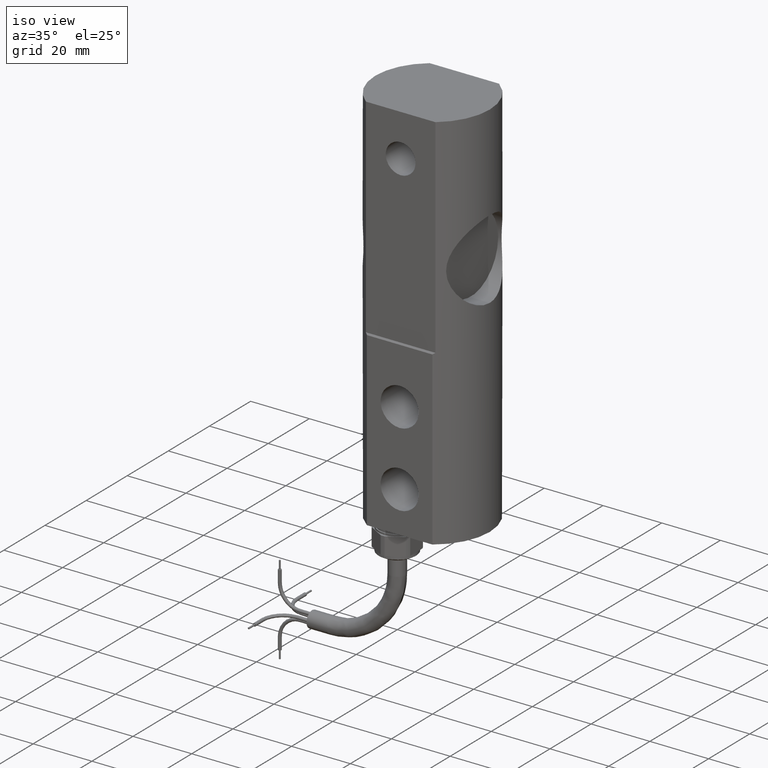
[diagram: clean part render]
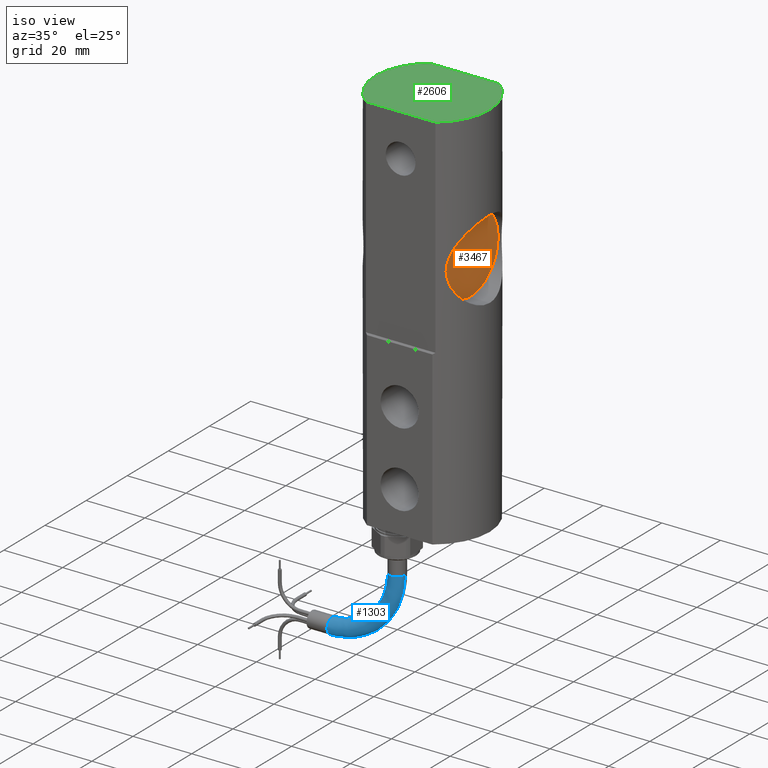
[diagram: same view with three faces highlighted in distinct colors, each labeled with its STEP entity id]
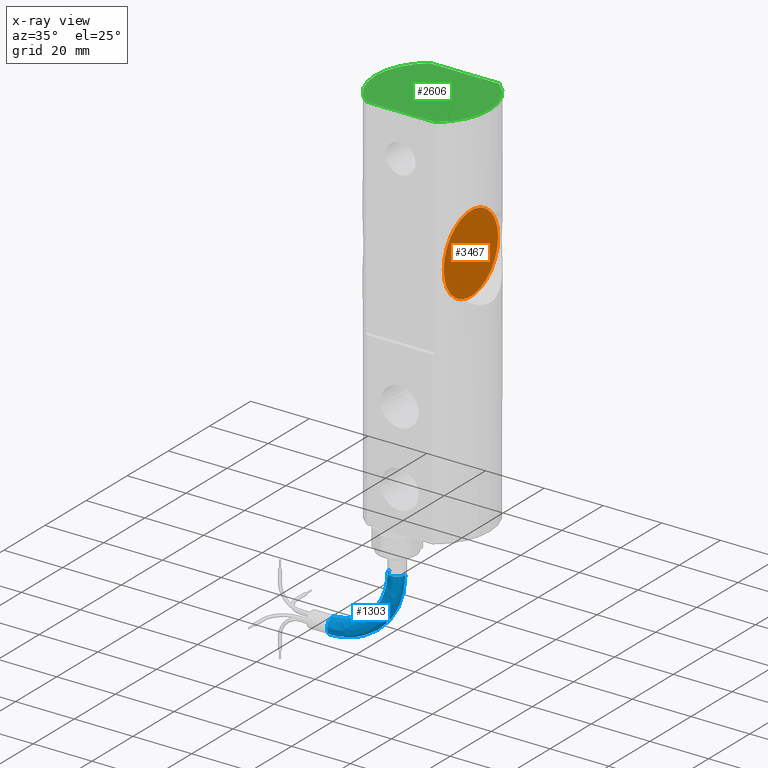
[diagram: x-ray of the same camera — body ghosted, the three highlighted faces saturated]
A machine part, iso view with three faces highlighted in distinct colors.
The next image is the same camera in x-ray (body ghosted, the three faces saturated) — at least one of them is partly hidden behind the body in this view.
Their STEP definitions:

[orange] entity #3467 — the highlighted planar face has unit normal (-1, 0, -0).
#105 = EDGE_LOOP ( 'NONE', ( #7913, #4775 ) ) ;
#336 = DIRECTION ( 'NONE',  ( 1.309225264888156130E-16, 1.000000000000000000, 0.000000000000000000 ) ) ;
#606 = DIRECTION ( 'NONE',  ( -1.000000000000000000, 9.367506770274759542E-17, -5.551115123125781470E-17 ) ) ;
#775 = CIRCLE ( 'NONE', #2448, 0.5216535433070866867 ) ;
#1503 = CIRCLE ( 'NONE', #2020, 0.5216535433070866867 ) ;
#1770 = AXIS2_PLACEMENT_3D ( 'NONE', #3108, #6792, #4793 ) ;
#2020 = AXIS2_PLACEMENT_3D ( 'NONE', #2155, #3350, #336 ) ;
#2155 = CARTESIAN_POINT ( 'NONE',  ( 0.5146160346248144224, -4.502050805039060145E-33, 0.7480314960629921295 ) ) ;
#2448 = AXIS2_PLACEMENT_3D ( 'NONE', #2462, #606, #4817 ) ;
#2462 = CARTESIAN_POINT ( 'NONE',  ( 0.5146160346248144224, -4.502050805039060145E-33, 0.7480314960629921295 ) ) ;
#2472 = FACE_OUTER_BOUND ( 'NONE', #105, .T. ) ;
#2503 = CARTESIAN_POINT ( 'NONE',  ( 0.5146160346248144224, -0.5216535433070866867, 0.7480314960629921295 ) ) ;
#2694 = VERTEX_POINT ( 'NONE', #4287 ) ;
#2770 = EDGE_CURVE ( 'NONE', #3878, #2694, #775, .T. ) ;
#2988 = PLANE ( 'NONE',  #1770 ) ;
#3108 = CARTESIAN_POINT ( 'NONE',  ( 0.5146160346248144224, 0.000000000000000000, 0.7480314960629921295 ) ) ;
#3350 = DIRECTION ( 'NONE',  ( -1.000000000000000000, 9.367506770274759542E-17, -5.551115123125781470E-17 ) ) ;
#3467 = ADVANCED_FACE ( 'NONE', ( #2472 ), #2988, .F. ) ;
#3878 = VERTEX_POINT ( 'NONE', #2503 ) ;
#4287 = CARTESIAN_POINT ( 'NONE',  ( 0.5146160346248145334, 0.5216535433070866867, 0.7480314960629921295 ) ) ;
#4492 = EDGE_CURVE ( 'NONE', #2694, #3878, #1503, .T. ) ;
#4775 = ORIENTED_EDGE ( 'NONE', *, *, #2770, .F. ) ;
#4793 = DIRECTION ( 'NONE',  ( -9.367506770274759542E-17, -1.000000000000000000, 0.000000000000000000 ) ) ;
#4817 = DIRECTION ( 'NONE',  ( 1.309225264888156130E-16, 1.000000000000000000, 0.000000000000000000 ) ) ;
#6792 = DIRECTION ( 'NONE',  ( -1.000000000000000000, 9.367506770274759542E-17, -5.551115123125781470E-17 ) ) ;
#7913 = ORIENTED_EDGE ( 'NONE', *, *, #4492, .F. ) ;

[blue] entity #1303 — the highlighted face is a freeform B-spline surface patch.
#362 = ORIENTED_EDGE ( 'NONE', *, *, #3856, .T. ) ;
#476 = DIRECTION ( 'NONE',  ( 2.929481985561874271E-34, 1.000000000000000000, -3.013039420990648003E-17 ) ) ;
#534 = VERTEX_POINT ( 'NONE', #7714 ) ;
#623 = AXIS2_PLACEMENT_3D ( 'NONE', #5542, #4936, #3016 ) ;
#798 = VERTEX_POINT ( 'NONE', #4467 ) ;
#808 = VERTEX_POINT ( 'NONE', #4959 ) ;
#931 = CARTESIAN_POINT ( 'NONE',  ( -1.338582677165401913, -3.006051234444428714E-16, -4.143700787401575880 ) ) ;
#970 = CARTESIAN_POINT ( 'NONE',  ( -0.8946303573103652207, -3.006051234444428714E-16, -4.143700787401575880 ) ) ;
#988 = CIRCLE ( 'NONE', #1381, 0.7578740157480315931 ) ;
#1223 = EDGE_CURVE ( 'NONE', #6460, #534, #5516, .T. ) ;
#1303 = ADVANCED_FACE ( 'NONE', ( #6340 ), #7888, .T. ) ;
#1314 = CARTESIAN_POINT ( 'NONE',  ( -1.338582677165402357, -2.645111093378986689E-16, -3.385826771653543510 ) ) ;
#1381 = AXIS2_PLACEMENT_3D ( 'NONE', #5976, #476, #7844 ) ;
#1496 = CARTESIAN_POINT ( 'NONE',  ( -0.5807086614173702088, -2.911465389961445604E-16, -3.829779091508580091 ) ) ;
#1580 = CARTESIAN_POINT ( 'NONE',  ( -0.8946303573103652207, -0.2165354330708663677, -4.143700787401575880 ) ) ;
#1768 = DIRECTION ( 'NONE',  ( 6.123233995736766036E-17, -3.013039420990648003E-17, -1.000000000000000000 ) ) ;
#2065 = CARTESIAN_POINT ( 'NONE',  ( -1.338582677165402135, -0.2165354330708663955, -4.143700787401575880 ) ) ;
#2717 = EDGE_CURVE ( 'NONE', #6460, #798, #5752, .T. ) ;
#3016 = DIRECTION ( 'NONE',  ( 0.000000000000000000, -3.013039420990646770E-17, -1.000000000000000000 ) ) ;
#3856 = EDGE_CURVE ( 'NONE', #808, #534, #6247, .T. ) ;
#3929 = CARTESIAN_POINT ( 'NONE',  ( -0.5807086614173702088, -2.777700805885097702E-16, -3.385826771653543510 ) ) ;
#3970 = CARTESIAN_POINT ( 'NONE',  ( -0.7677868373517837686, -0.2165354330708663955, -4.360236220472441637 ) ) ;
#4010 = CARTESIAN_POINT ( 'NONE',  ( -0.5807086614173703198, -0.2165354330708663677, -3.829779091508580979 ) ) ;
#4304 = EDGE_CURVE ( 'NONE', #798, #808, #988, .T. ) ;
#4441 = ORIENTED_EDGE ( 'NONE', *, *, #4304, .T. ) ;
#4454 = CARTESIAN_POINT ( 'NONE',  ( -0.5807086614173702088, -0.2165354330708663955, -3.385826771653543954 ) ) ;
#4467 = CARTESIAN_POINT ( 'NONE',  ( -0.5807086614173702088, -2.603592833640926818E-16, -3.385826771653543510 ) ) ;
#4534 = CARTESIAN_POINT ( 'NONE',  ( -0.3641732283465041187, -0.2165354330708663955, -3.956622611467162098 ) ) ;
#4604 = AXIS2_PLACEMENT_3D ( 'NONE', #1314, #6115, #6718 ) ;
#4936 = DIRECTION ( 'NONE',  ( 1.000000000000000000, 3.396960884064803638E-33, 1.224646799147353207E-16 ) ) ;
#4959 = CARTESIAN_POINT ( 'NONE',  ( -1.338582677165401913, -2.906083011732507493E-16, -4.143700787401574992 ) ) ;
#5140 = ORIENTED_EDGE ( 'NONE', *, *, #2717, .T. ) ;
#5174 = CARTESIAN_POINT ( 'NONE',  ( -1.338582677165401913, -2.938704501526698272E-16, -4.360236220472441637 ) ) ;
#5516 = CIRCLE ( 'NONE', #4604, 0.9744094488188980163 ) ;
#5542 = CARTESIAN_POINT ( 'NONE',  ( -1.338582677165401913, -2.906083011732507493E-16, -4.251968503937008315 ) ) ;
#5752 = CIRCLE ( 'NONE', #7309, 0.1082677165354330312 ) ;
#5828 = CARTESIAN_POINT ( 'NONE',  ( -0.7677868373517835465, -2.938704501526698765E-16, -4.360236220472441637 ) ) ;
#5922 = CARTESIAN_POINT ( 'NONE',  ( -0.3641732283465041742, -2.471003121134814819E-16, -3.385826771653543510 ) ) ;
#5976 = CARTESIAN_POINT ( 'NONE',  ( -1.338582677165402357, -2.777700805885097702E-16, -3.385826771653543510 ) ) ;
#6115 = DIRECTION ( 'NONE',  ( 2.929481985561874271E-34, 1.000000000000000000, -3.013039420990648003E-17 ) ) ;
#6247 = CIRCLE ( 'NONE', #623, 0.1082677165354331700 ) ;
#6305 = CARTESIAN_POINT ( 'NONE',  ( -1.338582677165402135, -0.2165354330708663955, -4.360236220472441637 ) ) ;
#6340 = FACE_OUTER_BOUND ( 'NONE', #7049, .T. ) ;
#6421 = CARTESIAN_POINT ( 'NONE',  ( -0.3641732283465041742, -2.645111093378986689E-16, -3.385826771653543510 ) ) ;
#6460 = VERTEX_POINT ( 'NONE', #5922 ) ;
#6613 = CARTESIAN_POINT ( 'NONE',  ( -0.4724409448819371637, -2.645111093378986689E-16, -3.385826771653543510 ) ) ;
#6658 = DIRECTION ( 'NONE',  ( 1.000000000000000000, 0.000000000000000000, 0.000000000000000000 ) ) ;
#6718 = DIRECTION ( 'NONE',  ( 0.000000000000000000, 3.013039420990648003E-17, 1.000000000000000000 ) ) ;
#7028 = CARTESIAN_POINT ( 'NONE',  ( -0.3641732283465041742, -2.817094130048576215E-16, -3.956622611467161654 ) ) ;
#7049 = EDGE_LOOP ( 'NONE', ( #5140, #4441, #362, #7292 ) ) ;
#7292 = ORIENTED_EDGE ( 'NONE', *, *, #1223, .F. ) ;
#7309 = AXIS2_PLACEMENT_3D ( 'NONE', #6613, #1768, #6658 ) ;
#7569 = CARTESIAN_POINT ( 'NONE',  ( -0.3641732283465041742, -0.2165354330708663955, -3.385826771653543954 ) ) ;
#7714 = CARTESIAN_POINT ( 'NONE',  ( -1.338582677165401913, -2.773493299226395494E-16, -4.360236220472441637 ) ) ;
#7844 = DIRECTION ( 'NONE',  ( 0.000000000000000000, 3.013039420990645538E-17, 1.000000000000000000 ) ) ;
#7888 =( BOUNDED_SURFACE ( )  B_SPLINE_SURFACE ( 3, 3, ( 
 ( #6421, #7028, #5828, #5174 ),
 ( #7569, #4534, #3970, #6305 ),
 ( #4454, #4010, #1580, #2065 ),
 ( #3929, #1496, #970, #931 ) ),
 .UNSPECIFIED., .F., .F., .F. ) 
 B_SPLINE_SURFACE_WITH_KNOTS ( ( 4, 4 ),
 ( 4, 4 ),
 ( 0.000000000000000000, 1.000000000000000000 ),
 ( 0.000000000000000000, 1.000000000000000000 ),
 .UNSPECIFIED. ) 
 GEOMETRIC_REPRESENTATION_ITEM ( )  RATIONAL_B_SPLINE_SURFACE ( (
 ( 1.000000000000000000, 0.8047378541243649375, 0.8047378541243649375, 1.000000000000000000),
 ( 0.3333333333333333703, 0.2682459513747883495, 0.2682459513747883495, 0.3333333333333333703),
 ( 0.3333333333333333703, 0.2682459513747883495, 0.2682459513747883495, 0.3333333333333333703),
 ( 1.000000000000000000, 0.8047378541243649375, 0.8047378541243649375, 1.000000000000000000) ) ) 
 REPRESENTATION_ITEM ( '' )  SURFACE ( )  );

[green] entity #2606 — the highlighted planar face has unit normal (0, 0, 1).
#66 = DIRECTION ( 'NONE',  ( -0.000000000000000000, -0.000000000000000000, -1.000000000000000000 ) ) ;
#70 = ORIENTED_EDGE ( 'NONE', *, *, #3951, .T. ) ;
#156 = CARTESIAN_POINT ( 'NONE',  ( -0.7677165354330708347, 0.6102362204724409711, 2.559055118110236560 ) ) ;
#294 = CARTESIAN_POINT ( 'NONE',  ( -0.4658330537873713872, 0.6102362204724409711, 2.559055118110236560 ) ) ;
#360 = AXIS2_PLACEMENT_3D ( 'NONE', #6576, #7359, #2336 ) ;
#457 = DIRECTION ( 'NONE',  ( -0.000000000000000000, -0.000000000000000000, -1.000000000000000000 ) ) ;
#462 = CARTESIAN_POINT ( 'NONE',  ( 0.4658330537873714983, 0.6102362204724409711, 2.559055118110236560 ) ) ;
#688 = ORIENTED_EDGE ( 'NONE', *, *, #736, .F. ) ;
#736 = EDGE_CURVE ( 'NONE', #1119, #1365, #4016, .T. ) ;
#1119 = VERTEX_POINT ( 'NONE', #3819 ) ;
#1169 = CARTESIAN_POINT ( 'NONE',  ( 0.4658330537873714983, -0.6102362204724409711, 2.559055118110236560 ) ) ;
#1365 = VERTEX_POINT ( 'NONE', #7526 ) ;
#1735 = FACE_OUTER_BOUND ( 'NONE', #4354, .T. ) ;
#1813 = PLANE ( 'NONE',  #360 ) ;
#2164 = ORIENTED_EDGE ( 'NONE', *, *, #6859, .F. ) ;
#2336 = DIRECTION ( 'NONE',  ( 1.000000000000000000, 0.000000000000000000, -0.000000000000000000 ) ) ;
#2561 = CARTESIAN_POINT ( 'NONE',  ( 0.000000000000000000, 0.000000000000000000, 2.559055118110236560 ) ) ;
#2580 = EDGE_CURVE ( 'NONE', #1119, #4194, #6065, .T. ) ;
#2606 = ADVANCED_FACE ( 'NONE', ( #1735 ), #1813, .T. ) ;
#2989 = CARTESIAN_POINT ( 'NONE',  ( 0.000000000000000000, 0.000000000000000000, 2.559055118110236560 ) ) ;
#3213 = ORIENTED_EDGE ( 'NONE', *, *, #7486, .T. ) ;
#3770 = LINE ( 'NONE', #156, #6764 ) ;
#3812 = CIRCLE ( 'NONE', #5860, 0.7677165354330708347 ) ;
#3819 = CARTESIAN_POINT ( 'NONE',  ( -0.4658330537873713317, -0.6102362204724409711, 2.559055118110236560 ) ) ;
#3824 = VECTOR ( 'NONE', #4854, 39.37007874015748143 ) ;
#3951 = EDGE_CURVE ( 'NONE', #6154, #6113, #3770, .T. ) ;
#4016 = CIRCLE ( 'NONE', #5253, 0.7677165354330708347 ) ;
#4194 = VERTEX_POINT ( 'NONE', #1169 ) ;
#4354 = EDGE_LOOP ( 'NONE', ( #3213, #70, #2164, #688, #7176 ) ) ;
#4854 = DIRECTION ( 'NONE',  ( 1.000000000000000000, 0.000000000000000000, -0.000000000000000000 ) ) ;
#5253 = AXIS2_PLACEMENT_3D ( 'NONE', #5530, #66, #5681 ) ;
#5376 = CARTESIAN_POINT ( 'NONE',  ( 0.000000000000000000, -0.6102362204724409711, 2.559055118110236560 ) ) ;
#5530 = CARTESIAN_POINT ( 'NONE',  ( 0.000000000000000000, 0.000000000000000000, 2.559055118110236560 ) ) ;
#5675 = DIRECTION ( 'NONE',  ( -1.000000000000000000, 0.000000000000000000, 0.000000000000000000 ) ) ;
#5681 = DIRECTION ( 'NONE',  ( -1.000000000000000000, 0.000000000000000000, 0.000000000000000000 ) ) ;
#5860 = AXIS2_PLACEMENT_3D ( 'NONE', #2989, #457, #7334 ) ;
#6065 = LINE ( 'NONE', #5376, #3824 ) ;
#6113 = VERTEX_POINT ( 'NONE', #294 ) ;
#6154 = VERTEX_POINT ( 'NONE', #462 ) ;
#6576 = CARTESIAN_POINT ( 'NONE',  ( 0.000000000000000000, 0.000000000000000000, 2.559055118110236560 ) ) ;
#6764 = VECTOR ( 'NONE', #6783, 39.37007874015748143 ) ;
#6783 = DIRECTION ( 'NONE',  ( -1.000000000000000000, -0.000000000000000000, -0.000000000000000000 ) ) ;
#6859 = EDGE_CURVE ( 'NONE', #1365, #6113, #3812, .T. ) ;
#6914 = DIRECTION ( 'NONE',  ( 0.000000000000000000, 0.000000000000000000, 1.000000000000000000 ) ) ;
#7063 = AXIS2_PLACEMENT_3D ( 'NONE', #2561, #6914, #5675 ) ;
#7176 = ORIENTED_EDGE ( 'NONE', *, *, #2580, .T. ) ;
#7195 = CIRCLE ( 'NONE', #7063, 0.7677165354330708347 ) ;
#7334 = DIRECTION ( 'NONE',  ( -1.000000000000000000, 0.000000000000000000, 0.000000000000000000 ) ) ;
#7359 = DIRECTION ( 'NONE',  ( 0.000000000000000000, 0.000000000000000000, 1.000000000000000000 ) ) ;
#7486 = EDGE_CURVE ( 'NONE', #4194, #6154, #7195, .T. ) ;
#7526 = CARTESIAN_POINT ( 'NONE',  ( -0.7677165354330708347, 0.000000000000000000, 2.559055118110236560 ) ) ;